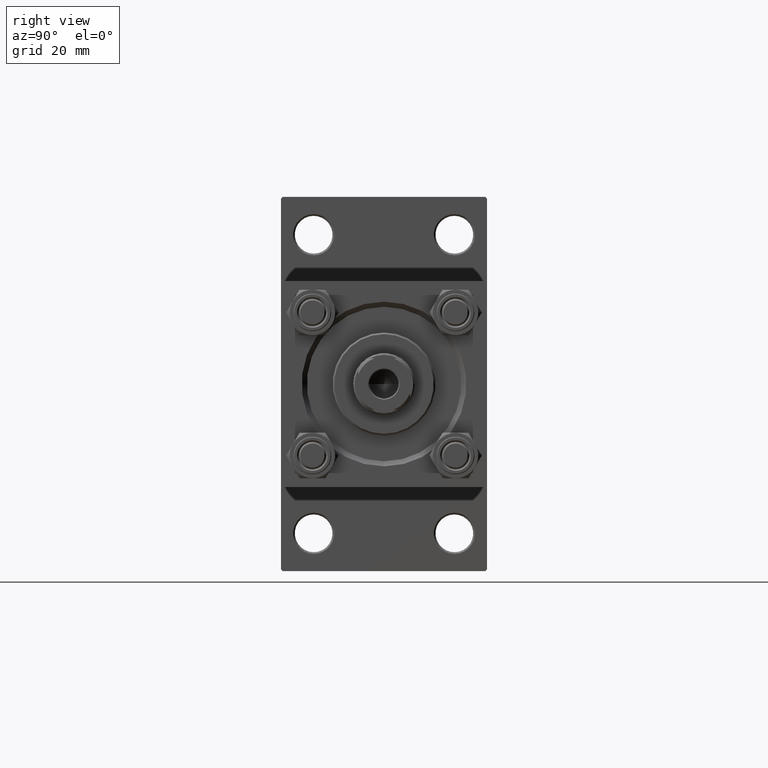
[diagram: clean part render]
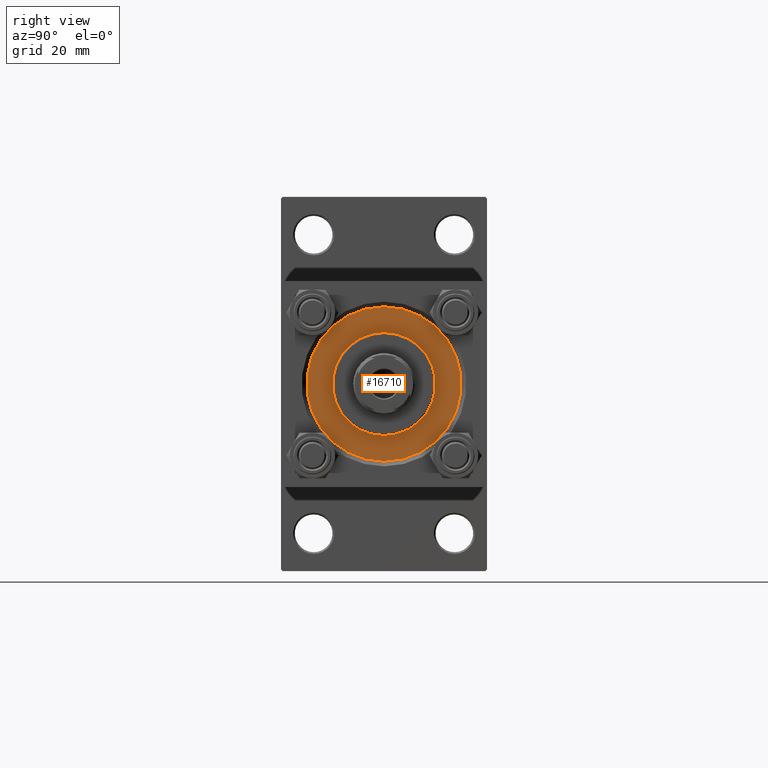
[diagram: same view with one face highlighted and labeled with its STEP entity id]
A machine part, right view. The second image highlights one B-rep face of the part: STEP entity #16710.
In plain terms, the highlighted planar face has unit normal (1, 0, 0).
Its self-contained STEP definition (entity closure, byte-faithful):
#2829 = CARTESIAN_POINT ( 'NONE',  ( 0.000000000000000000, 0.000000000000000000, 28.69999999999999929 ) ) ;
#3325 = FACE_OUTER_BOUND ( 'NONE', #9421, .T. ) ;
#4069 = CARTESIAN_POINT ( 'NONE',  ( 22.50000000000000355, 2.755455298081545172E-15, 28.69999999999999929 ) ) ;
#4151 = EDGE_LOOP ( 'NONE', ( #18622, #34458 ) ) ;
#4336 = EDGE_CURVE ( 'NONE', #31164, #20374, #32442, .T. ) ;
#8018 = DIRECTION ( 'NONE',  ( 1.000000000000000000, 0.000000000000000000, 0.000000000000000000 ) ) ;
#8136 = DIRECTION ( 'NONE',  ( 0.000000000000000000, 0.000000000000000000, 1.000000000000000000 ) ) ;
#9421 = EDGE_LOOP ( 'NONE', ( #27875, #43970 ) ) ;
#10306 = AXIS2_PLACEMENT_3D ( 'NONE', #16568, #35297, #8018 ) ;
#10683 = AXIS2_PLACEMENT_3D ( 'NONE', #20682, #40904, #32310 ) ;
#11351 = CARTESIAN_POINT ( 'NONE',  ( 0.000000000000000000, 0.000000000000000000, 28.69999999999999929 ) ) ;
#11991 = CIRCLE ( 'NONE', #22492, 15.00000000000000000 ) ;
#14918 = PLANE ( 'NONE',  #22245 ) ;
#16568 = CARTESIAN_POINT ( 'NONE',  ( 0.000000000000000000, 0.000000000000000000, 28.69999999999999929 ) ) ;
#16710 = ADVANCED_FACE ( 'NONE', ( #38177, #3325 ), #14918, .T. ) ;
#18622 = ORIENTED_EDGE ( 'NONE', *, *, #4336, .F. ) ;
#18990 = DIRECTION ( 'NONE',  ( 1.000000000000000000, 0.000000000000000000, 0.000000000000000000 ) ) ;
#20374 = VERTEX_POINT ( 'NONE', #43969 ) ;
#20682 = CARTESIAN_POINT ( 'NONE',  ( 0.000000000000000000, 0.000000000000000000, 28.69999999999999929 ) ) ;
#20943 = CIRCLE ( 'NONE', #46802, 22.50000000000000355 ) ;
#22245 = AXIS2_PLACEMENT_3D ( 'NONE', #2829, #34387, #29609 ) ;
#22492 = AXIS2_PLACEMENT_3D ( 'NONE', #11351, #42434, #45975 ) ;
#24570 = EDGE_CURVE ( 'NONE', #35128, #37720, #39329, .T. ) ;
#27597 = EDGE_CURVE ( 'NONE', #37720, #35128, #20943, .T. ) ;
#27875 = ORIENTED_EDGE ( 'NONE', *, *, #27597, .T. ) ;
#29609 = DIRECTION ( 'NONE',  ( 1.000000000000000000, 0.000000000000000000, -0.000000000000000000 ) ) ;
#30328 = CARTESIAN_POINT ( 'NONE',  ( -15.00000000000000000, 0.000000000000000000, 28.69999999999999929 ) ) ;
#31164 = VERTEX_POINT ( 'NONE', #30328 ) ;
#32310 = DIRECTION ( 'NONE',  ( 1.000000000000000000, 0.000000000000000000, 0.000000000000000000 ) ) ;
#32442 = CIRCLE ( 'NONE', #10683, 15.00000000000000000 ) ;
#34387 = DIRECTION ( 'NONE',  ( 0.000000000000000000, 0.000000000000000000, 1.000000000000000000 ) ) ;
#34458 = ORIENTED_EDGE ( 'NONE', *, *, #40490, .F. ) ;
#35128 = VERTEX_POINT ( 'NONE', #4069 ) ;
#35297 = DIRECTION ( 'NONE',  ( 0.000000000000000000, 0.000000000000000000, 1.000000000000000000 ) ) ;
#37720 = VERTEX_POINT ( 'NONE', #41509 ) ;
#38177 = FACE_BOUND ( 'NONE', #4151, .T. ) ;
#38205 = CARTESIAN_POINT ( 'NONE',  ( 0.000000000000000000, 0.000000000000000000, 28.69999999999999929 ) ) ;
#39329 = CIRCLE ( 'NONE', #10306, 22.50000000000000355 ) ;
#40490 = EDGE_CURVE ( 'NONE', #20374, #31164, #11991, .T. ) ;
#40904 = DIRECTION ( 'NONE',  ( 0.000000000000000000, 0.000000000000000000, 1.000000000000000000 ) ) ;
#41509 = CARTESIAN_POINT ( 'NONE',  ( -22.50000000000000355, 0.000000000000000000, 28.69999999999999929 ) ) ;
#42434 = DIRECTION ( 'NONE',  ( 0.000000000000000000, 0.000000000000000000, 1.000000000000000000 ) ) ;
#43969 = CARTESIAN_POINT ( 'NONE',  ( 15.00000000000000000, 1.836970198721029589E-15, 28.69999999999999929 ) ) ;
#43970 = ORIENTED_EDGE ( 'NONE', *, *, #24570, .T. ) ;
#45975 = DIRECTION ( 'NONE',  ( 1.000000000000000000, 0.000000000000000000, 0.000000000000000000 ) ) ;
#46802 = AXIS2_PLACEMENT_3D ( 'NONE', #38205, #8136, #18990 ) ;